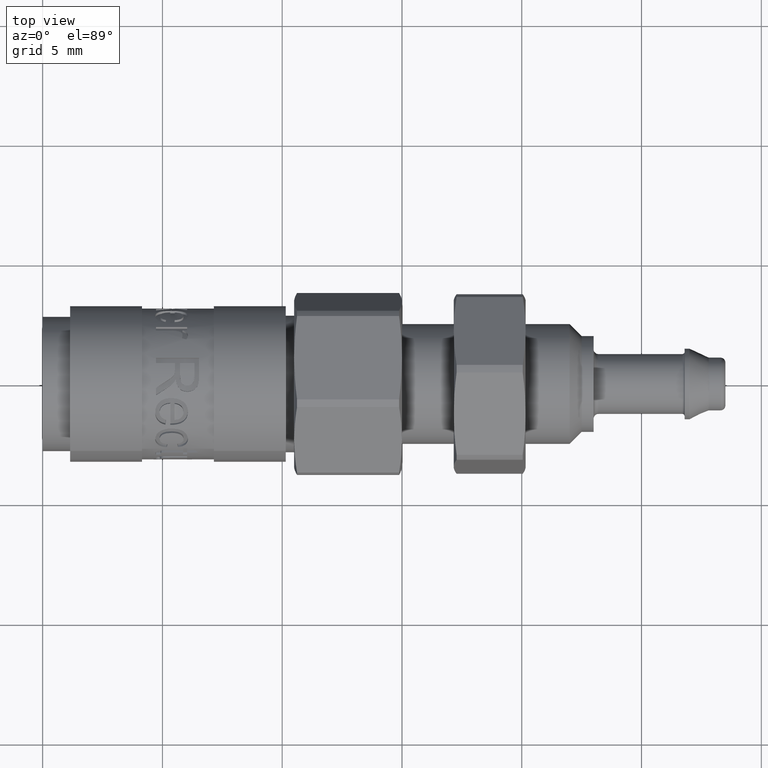
[diagram: clean part render]
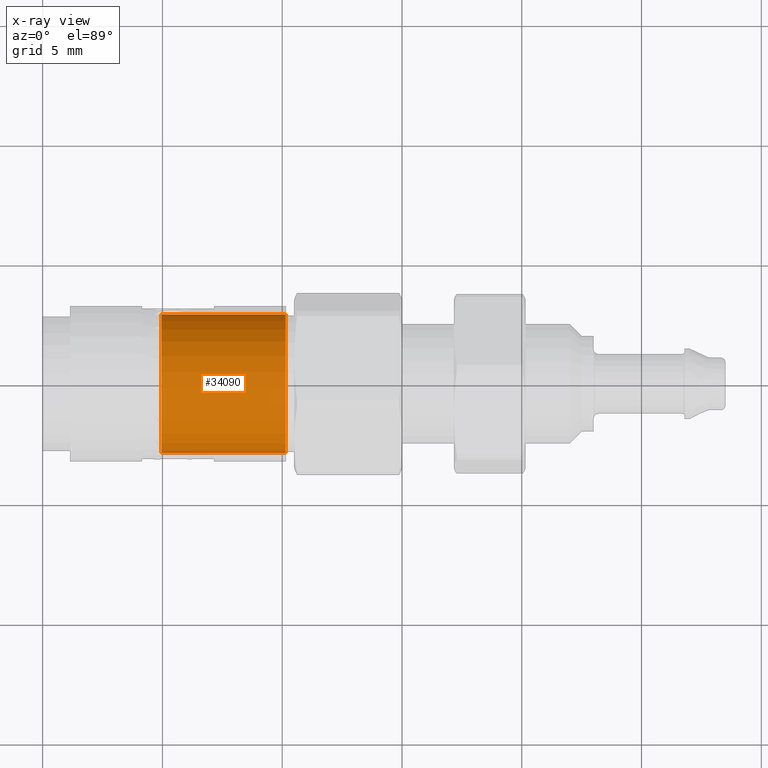
[diagram: x-ray — body ghosted, one internal face saturated and labeled with its STEP entity id]
A machine part, top view, then the same camera in x-ray: the body is ghosted and one INTERNAL B-rep face — a face not visible from any outside direction — is saturated and labeled: STEP entity #34090.
In plain terms, the highlighted cylindrical surface (bore or boss wall) has radius 2.9 mm, axis along (-1, -0, -0).
Its self-contained STEP definition (entity closure, byte-faithful):
#34056=CARTESIAN_POINT('',(4.950000000000005,-2.515555317983051,1.442907288139878));
#34057=VERTEX_POINT('',#34056);
#34058=CARTESIAN_POINT('',(4.950000000000006,-1.436264E-016,-5.778837E-015));
#34059=DIRECTION('',(-1.0,4.588551E-016,-2.631965E-016));
#34060=DIRECTION('',(-5.289805E-016,-0.867432868270017,0.497554237289615));
#34061=AXIS2_PLACEMENT_3D('',#34058,#34059,#34060);
#34062=CIRCLE('',#34061,2.9);
#34063=EDGE_CURVE('',#34057,#34057,#34062,.T.);
#34071=CARTESIAN_POINT('',(7.550000000000006,-7.181320E-017,-2.889419E-015));
#34072=DIRECTION('',(-1.0,-2.762046E-017,-1.111315E-015));
#34073=DIRECTION('',(-5.289805E-016,-0.867432868270017,0.497554237289615));
#34074=AXIS2_PLACEMENT_3D('',#34071,#34072,#34073);
#34075=CYLINDRICAL_SURFACE('',#34074,2.9);
#34076=CARTESIAN_POINT('',(10.150000000000004,-2.515555317983051,1.442907288139884));
#34077=VERTEX_POINT('',#34076);
#34078=CARTESIAN_POINT('',(10.150000000000006,1.833369E-030,3.953977E-030));
#34079=DIRECTION('',(-1.0,4.588551E-016,-2.631965E-016));
#34080=DIRECTION('',(-5.289805E-016,-0.867432868270017,0.497554237289615));
#34081=AXIS2_PLACEMENT_3D('',#34078,#34079,#34080);
#34082=CIRCLE('',#34081,2.9);
#34083=EDGE_CURVE('',#34077,#34077,#34082,.T.);
#34084=ORIENTED_EDGE('',*,*,#34083,.F.);
#34085=EDGE_LOOP('',(#34084));
#34086=FACE_OUTER_BOUND('',#34085,.T.);
#34087=ORIENTED_EDGE('',*,*,#34063,.T.);
#34088=EDGE_LOOP('',(#34087));
#34089=FACE_BOUND('',#34088,.T.);
#34090=ADVANCED_FACE('',(#34086,#34089),#34075,.F.);